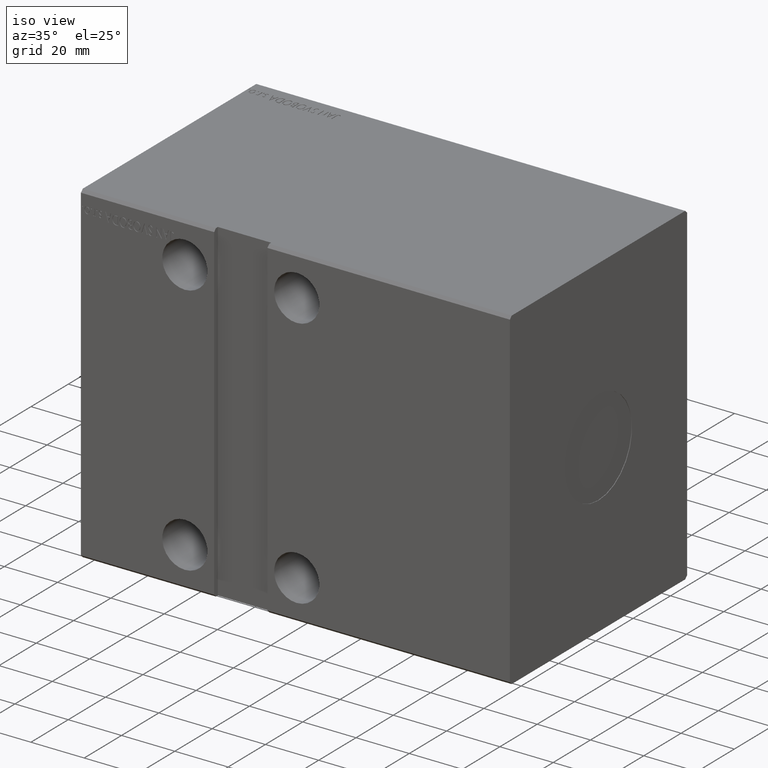
[diagram: clean part render]
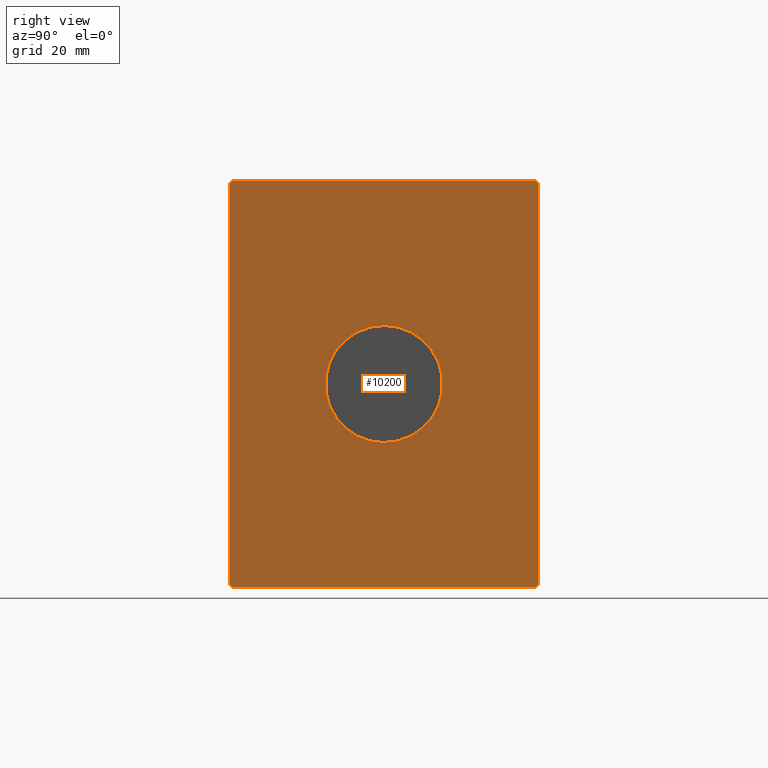
[diagram: tour spotlight — one face highlighted and labeled with its STEP entity id]
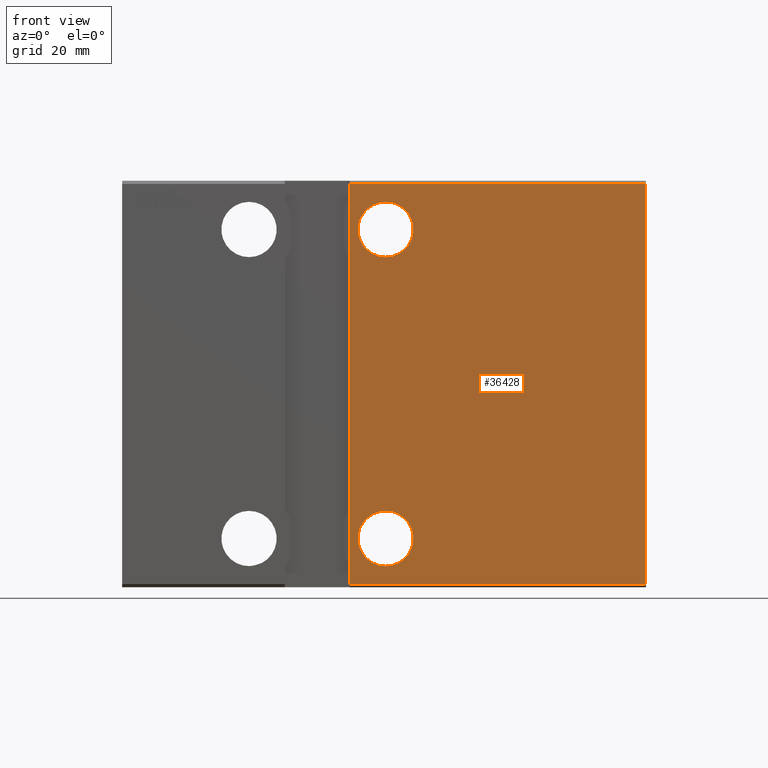
[diagram: tour spotlight — one face highlighted and labeled with its STEP entity id]
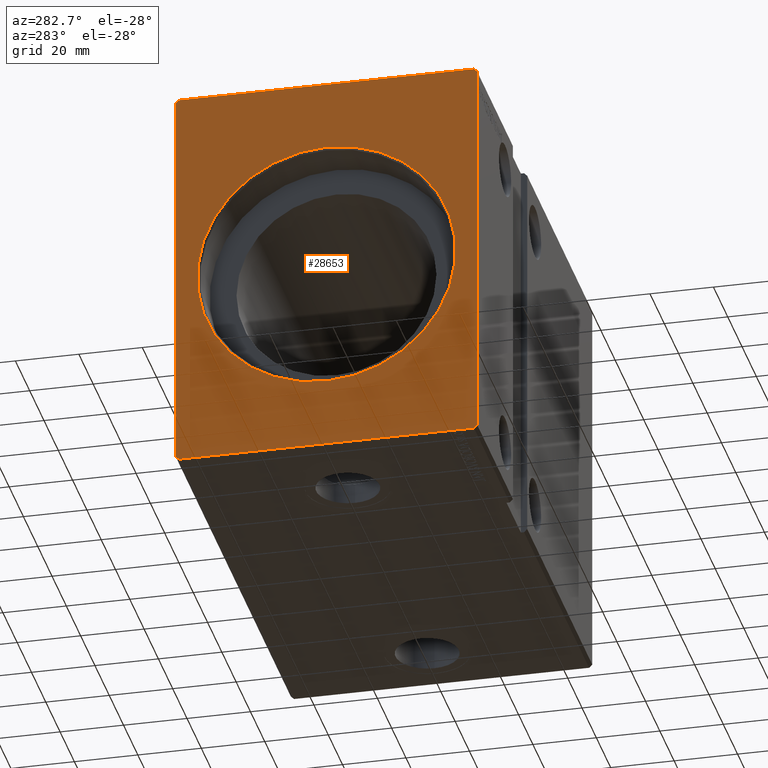
[diagram: tour spotlight — one face highlighted and labeled with its STEP entity id]
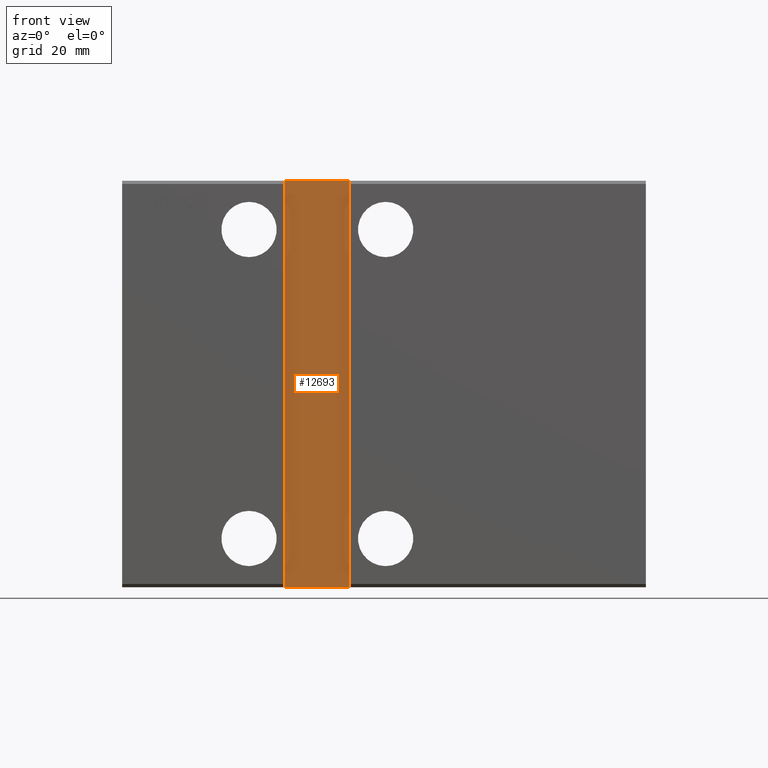
[diagram: tour spotlight — one face highlighted and labeled with its STEP entity id]
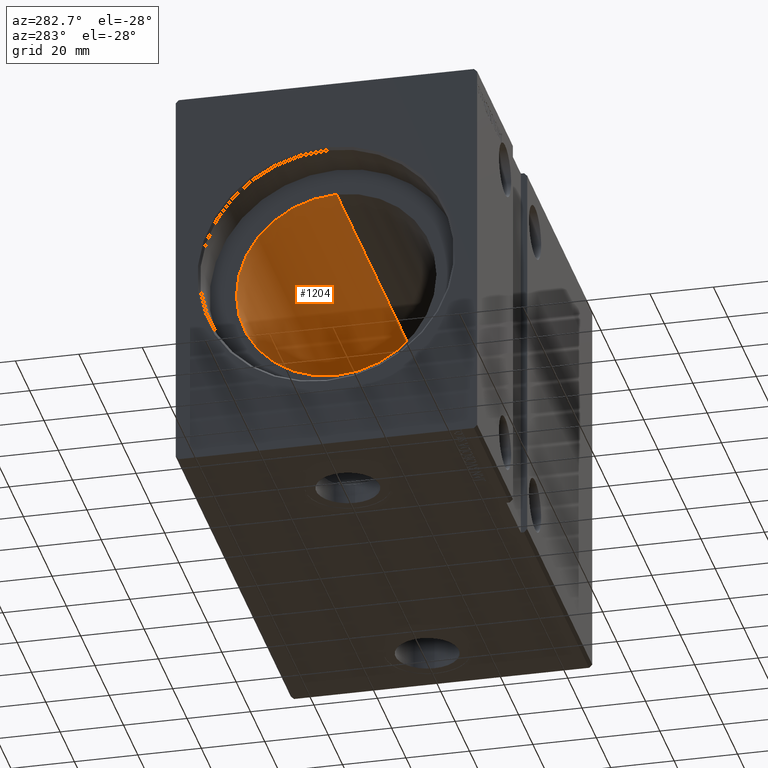
[diagram: tour spotlight — one face highlighted and labeled with its STEP entity id]
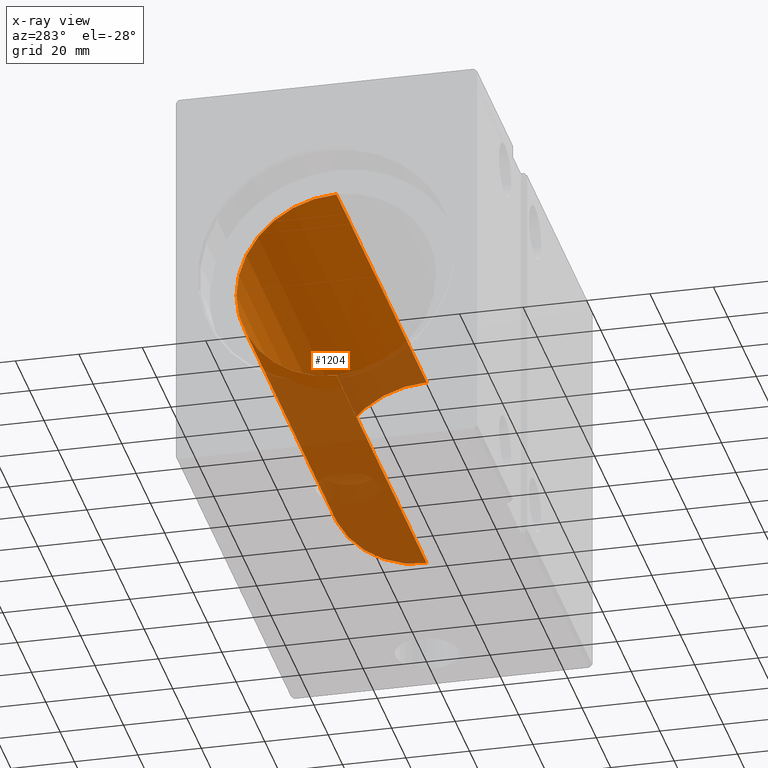
[diagram: x-ray of the same camera — body ghosted, this tour face saturated]
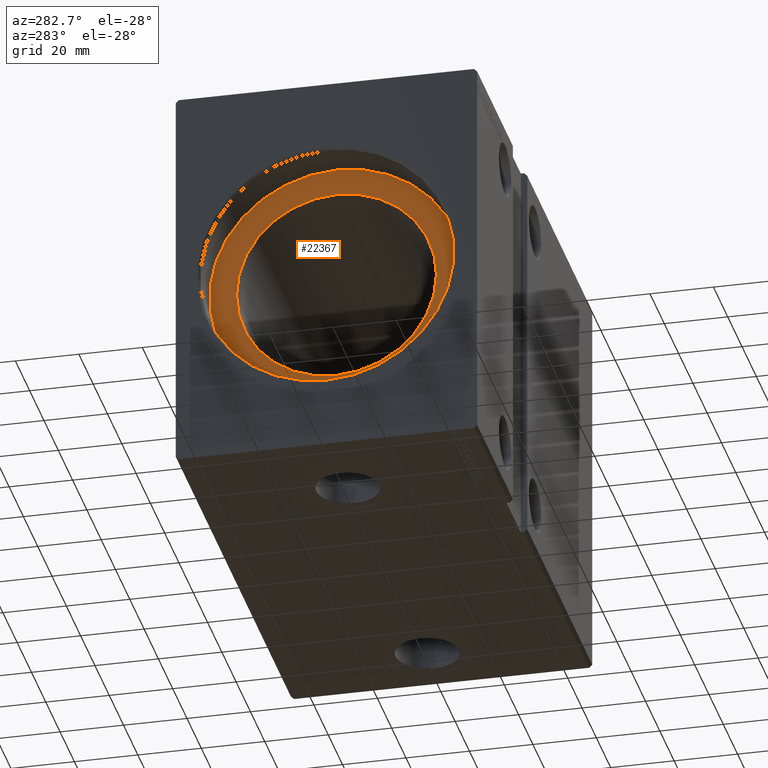
[diagram: tour spotlight — one face highlighted and labeled with its STEP entity id]
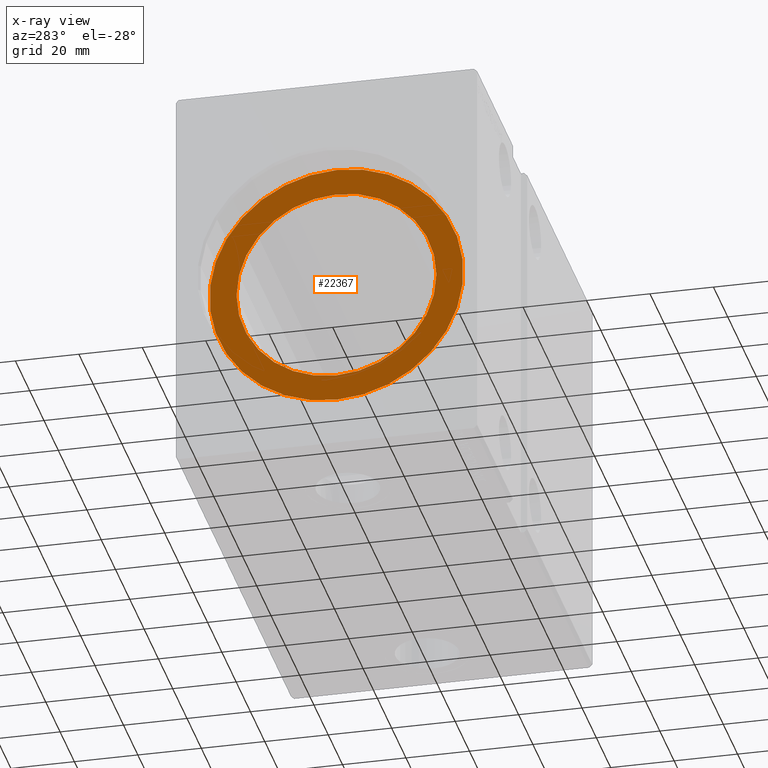
[diagram: x-ray of the same camera — body ghosted, this tour face saturated]
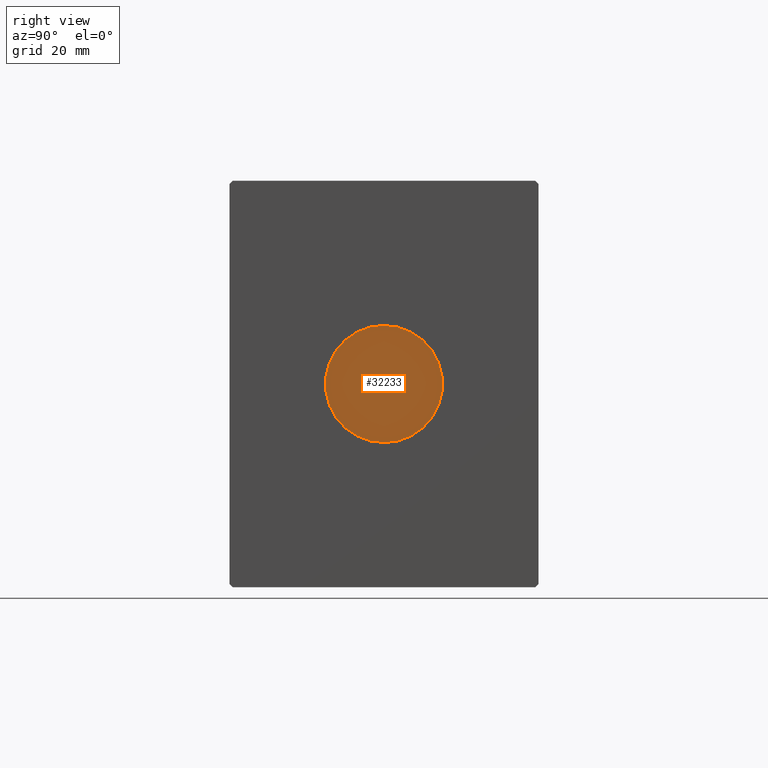
[diagram: tour spotlight — one face highlighted and labeled with its STEP entity id]
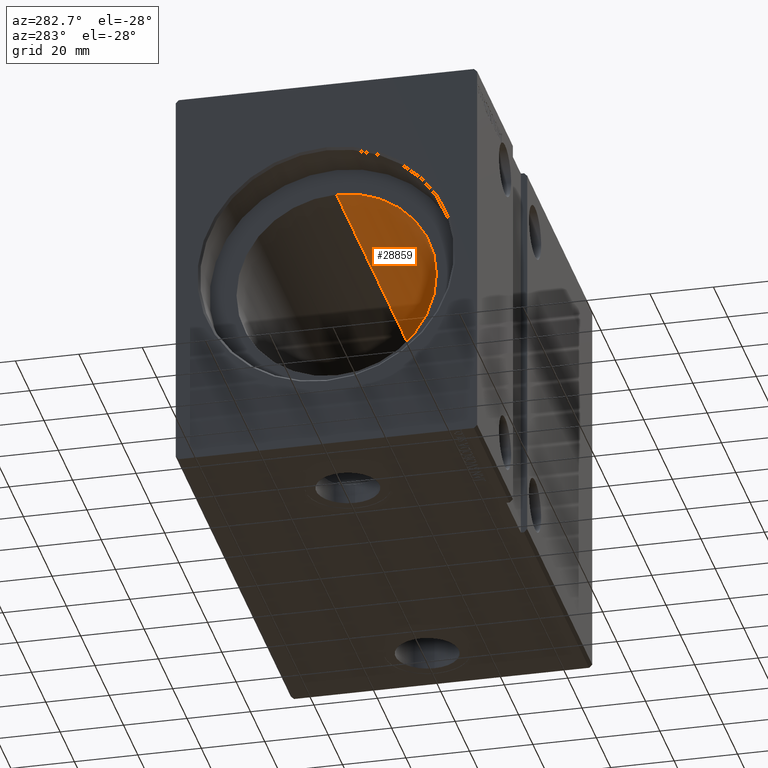
[diagram: tour spotlight — one face highlighted and labeled with its STEP entity id]
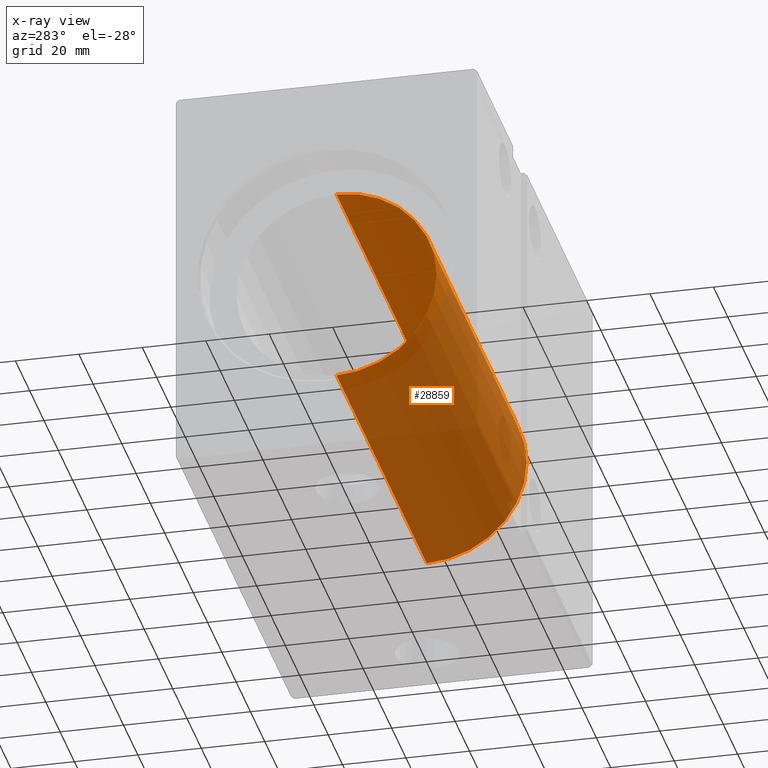
[diagram: x-ray of the same camera — body ghosted, this tour face saturated]
A machine part: a face-by-face anatomy tour. The part has 805 B-rep faces; the first image is the clean iso view, then the 8 largest visible faces are spotlighted one at a time (largest first), each with its STEP entity span.

Face 1 — right view, entity #10200. In plain terms, the highlighted planar face has unit normal (1, 0, 0).
Definition (entity closure, byte-faithful):
#248 = CARTESIAN_POINT ( 'NONE',  ( 161.0000000000000000, 46.50000000000000000, -62.50000000000000000 ) ) ;
#251 = CARTESIAN_POINT ( 'NONE',  ( 161.0000000000000000, -47.50000000000001421, 61.49999999999997868 ) ) ;
#363 = DIRECTION ( 'NONE',  ( 0.000000000000000000, 1.692413147294445970E-16, -1.000000000000000000 ) ) ;
#1063 = EDGE_CURVE ( 'NONE', #6188, #34056, #13962, .T. ) ;
#1837 = CARTESIAN_POINT ( 'NONE',  ( 161.0000000000000000, -46.50000000000000000, -62.50000000000001421 ) ) ;
#3251 = VERTEX_POINT ( 'NONE', #40828 ) ;
#3440 = FACE_BOUND ( 'NONE', #29229, .T. ) ;
#3656 = CARTESIAN_POINT ( 'NONE',  ( 161.0000000000000000, 0.000000000000000000, 0.000000000000000000 ) ) ;
#3774 = CARTESIAN_POINT ( 'NONE',  ( 161.0000000000000000, -47.50000000000001421, 61.49999999999997868 ) ) ;
#5614 = LINE ( 'NONE', #38035, #14957 ) ;
#6188 = VERTEX_POINT ( 'NONE', #14449 ) ;
#6478 = ORIENTED_EDGE ( 'NONE', *, *, #29978, .T. ) ;
#6598 = DIRECTION ( 'NONE',  ( 0.000000000000000000, 0.7071067811865451302, -0.7071067811865500152 ) ) ;
#6612 = DIRECTION ( 'NONE',  ( 0.000000000000000000, -1.128275431529630729E-16, 1.000000000000000000 ) ) ;
#7408 = ORIENTED_EDGE ( 'NONE', *, *, #16817, .T. ) ;
#7470 = DIRECTION ( 'NONE',  ( 0.000000000000000000, 0.7071067811865574537, 0.7071067811865376918 ) ) ;
#9282 = EDGE_CURVE ( 'NONE', #3251, #31462, #29238, .T. ) ;
#10154 = LINE ( 'NONE', #10368, #33413 ) ;
#10200 = ADVANCED_FACE ( 'NONE', ( #3440, #26276 ), #16454, .T. ) ;
#10368 = CARTESIAN_POINT ( 'NONE',  ( 161.0000000000000000, 46.50000000000000000, 62.49999999999998579 ) ) ;
#10500 = CARTESIAN_POINT ( 'NONE',  ( 161.0000000000000000, 0.000000000000000000, 0.000000000000000000 ) ) ;
#11056 = ORIENTED_EDGE ( 'NONE', *, *, #14491, .T. ) ;
#11514 = VERTEX_POINT ( 'NONE', #251 ) ;
#13124 = CARTESIAN_POINT ( 'NONE',  ( 161.0000000000000000, 46.50000000000000000, 62.49999999999998579 ) ) ;
#13189 = ORIENTED_EDGE ( 'NONE', *, *, #42193, .T. ) ;
#13207 = LINE ( 'NONE', #16836, #41568 ) ;
#13744 = LINE ( 'NONE', #37201, #22472 ) ;
#13962 = CIRCLE ( 'NONE', #19390, 18.00000000000000000 ) ;
#14231 = CARTESIAN_POINT ( 'NONE',  ( 161.0000000000000000, 47.50000000000000000, 61.49999999999998579 ) ) ;
#14336 = DIRECTION ( 'NONE',  ( 0.000000000000000000, 0.000000000000000000, -1.000000000000000000 ) ) ;
#14449 = CARTESIAN_POINT ( 'NONE',  ( 161.0000000000000000, 0.000000000000000000, -18.00000000000000000 ) ) ;
#14491 = EDGE_CURVE ( 'NONE', #25483, #3251, #26915, .T. ) ;
#14957 = VECTOR ( 'NONE', #18193, 1000.000000000000114 ) ;
#15155 = ORIENTED_EDGE ( 'NONE', *, *, #17198, .T. ) ;
#15940 = LINE ( 'NONE', #3774, #39519 ) ;
#16454 = PLANE ( 'NONE',  #36248 ) ;
#16601 = ORIENTED_EDGE ( 'NONE', *, *, #1063, .F. ) ;
#16637 = EDGE_LOOP ( 'NONE', ( #38078, #15155, #18142, #6478, #7408, #13189, #11056, #27047 ) ) ;
#16817 = EDGE_CURVE ( 'NONE', #36673, #18168, #13207, .T. ) ;
#16836 = CARTESIAN_POINT ( 'NONE',  ( 161.0000000000000000, -47.49999999999999289, -61.50000000000001421 ) ) ;
#17198 = EDGE_CURVE ( 'NONE', #37503, #34168, #10154, .T. ) ;
#17367 = DIRECTION ( 'NONE',  ( 0.000000000000000000, -0.7071067811865474617, 0.7071067811865474617 ) ) ;
#17646 = VECTOR ( 'NONE', #7470, 999.9999999999998863 ) ;
#18142 = ORIENTED_EDGE ( 'NONE', *, *, #23957, .T. ) ;
#18168 = VERTEX_POINT ( 'NONE', #1837 ) ;
#18193 = DIRECTION ( 'NONE',  ( 0.000000000000000000, -0.7071067811865474617, -0.7071067811865474617 ) ) ;
#18484 = CIRCLE ( 'NONE', #37542, 18.00000000000000000 ) ;
#19001 = CARTESIAN_POINT ( 'NONE',  ( 161.0000000000000000, 47.50000000000001421, -61.50000000000001421 ) ) ;
#19323 = VECTOR ( 'NONE', #29915, 1000.000000000000000 ) ;
#19390 = AXIS2_PLACEMENT_3D ( 'NONE', #31568, #42203, #41786 ) ;
#20009 = EDGE_CURVE ( 'NONE', #34056, #6188, #18484, .T. ) ;
#20213 = CARTESIAN_POINT ( 'NONE',  ( 161.0000000000000000, -47.49999999999999289, -61.50000000000001421 ) ) ;
#22472 = VECTOR ( 'NONE', #17367, 1000.000000000000114 ) ;
#23957 = EDGE_CURVE ( 'NONE', #34168, #11514, #5614, .T. ) ;
#24538 = EDGE_CURVE ( 'NONE', #31462, #37503, #13744, .T. ) ;
#24979 = ORIENTED_EDGE ( 'NONE', *, *, #20009, .F. ) ;
#25483 = VERTEX_POINT ( 'NONE', #30815 ) ;
#26276 = FACE_OUTER_BOUND ( 'NONE', #16637, .T. ) ;
#26915 = LINE ( 'NONE', #248, #17646 ) ;
#27047 = ORIENTED_EDGE ( 'NONE', *, *, #9282, .T. ) ;
#27144 = LINE ( 'NONE', #40152, #19323 ) ;
#29229 = EDGE_LOOP ( 'NONE', ( #16601, #24979 ) ) ;
#29238 = LINE ( 'NONE', #19001, #30766 ) ;
#29915 = DIRECTION ( 'NONE',  ( 0.000000000000000000, 1.000000000000000000, 1.492235248152092278E-16 ) ) ;
#29978 = EDGE_CURVE ( 'NONE', #11514, #36673, #15940, .T. ) ;
#30148 = DIRECTION ( 'NONE',  ( 1.000000000000000000, 0.000000000000000000, 0.000000000000000000 ) ) ;
#30766 = VECTOR ( 'NONE', #6612, 1000.000000000000000 ) ;
#30789 = CARTESIAN_POINT ( 'NONE',  ( 161.0000000000000000, 2.204364238465235428E-15, 18.00000000000000000 ) ) ;
#30815 = CARTESIAN_POINT ( 'NONE',  ( 161.0000000000000000, 46.50000000000000000, -62.50000000000000000 ) ) ;
#31462 = VERTEX_POINT ( 'NONE', #14231 ) ;
#31568 = CARTESIAN_POINT ( 'NONE',  ( 161.0000000000000000, 0.000000000000000000, 0.000000000000000000 ) ) ;
#33413 = VECTOR ( 'NONE', #35788, 1000.000000000000000 ) ;
#34056 = VERTEX_POINT ( 'NONE', #30789 ) ;
#34131 = CARTESIAN_POINT ( 'NONE',  ( 161.0000000000000000, -46.50000000000001421, 62.49999999999997868 ) ) ;
#34168 = VERTEX_POINT ( 'NONE', #34131 ) ;
#35660 = DIRECTION ( 'NONE',  ( 0.000000000000000000, 0.000000000000000000, -1.000000000000000000 ) ) ;
#35788 = DIRECTION ( 'NONE',  ( 0.000000000000000000, -1.000000000000000000, -7.461176240760460157E-17 ) ) ;
#36248 = AXIS2_PLACEMENT_3D ( 'NONE', #3656, #41266, #35660 ) ;
#36673 = VERTEX_POINT ( 'NONE', #20213 ) ;
#37201 = CARTESIAN_POINT ( 'NONE',  ( 161.0000000000000000, 47.50000000000000000, 61.49999999999998579 ) ) ;
#37503 = VERTEX_POINT ( 'NONE', #13124 ) ;
#37542 = AXIS2_PLACEMENT_3D ( 'NONE', #10500, #30148, #14336 ) ;
#38035 = CARTESIAN_POINT ( 'NONE',  ( 161.0000000000000000, -46.50000000000001421, 62.49999999999997868 ) ) ;
#38078 = ORIENTED_EDGE ( 'NONE', *, *, #24538, .T. ) ;
#39519 = VECTOR ( 'NONE', #363, 1000.000000000000000 ) ;
#40152 = CARTESIAN_POINT ( 'NONE',  ( 161.0000000000000000, -46.50000000000000000, -62.50000000000001421 ) ) ;
#40828 = CARTESIAN_POINT ( 'NONE',  ( 161.0000000000000000, 47.50000000000001421, -61.50000000000001421 ) ) ;
#41266 = DIRECTION ( 'NONE',  ( 1.000000000000000000, 0.000000000000000000, 0.000000000000000000 ) ) ;
#41568 = VECTOR ( 'NONE', #6598, 1000.000000000000114 ) ;
#41786 = DIRECTION ( 'NONE',  ( 0.000000000000000000, 0.000000000000000000, -1.000000000000000000 ) ) ;
#42193 = EDGE_CURVE ( 'NONE', #18168, #25483, #27144, .T. ) ;
#42203 = DIRECTION ( 'NONE',  ( 1.000000000000000000, 0.000000000000000000, 0.000000000000000000 ) ) ;

Face 2 — front view, entity #36428. In plain terms, the highlighted planar face has unit normal (-0, 1, 0).
Definition (entity closure, byte-faithful):
#251 = CARTESIAN_POINT ( 'NONE',  ( 161.0000000000000000, -47.50000000000001421, 61.49999999999997868 ) ) ;
#363 = DIRECTION ( 'NONE',  ( 0.000000000000000000, 1.692413147294445970E-16, -1.000000000000000000 ) ) ;
#375 = ORIENTED_EDGE ( 'NONE', *, *, #28875, .F. ) ;
#1116 = VERTEX_POINT ( 'NONE', #32821 ) ;
#1328 = CARTESIAN_POINT ( 'NONE',  ( 81.00000000000001421, -47.49999999999999289, -39.00000000000000000 ) ) ;
#1662 = ORIENTED_EDGE ( 'NONE', *, *, #10953, .T. ) ;
#1944 = ORIENTED_EDGE ( 'NONE', *, *, #38245, .F. ) ;
#2026 = LINE ( 'NONE', #37659, #29922 ) ;
#2287 = CARTESIAN_POINT ( 'NONE',  ( 70.00000000000001421, -47.50000000000000711, -61.50000000000002132 ) ) ;
#3266 = CARTESIAN_POINT ( 'NONE',  ( 161.0000000000000000, -47.50000000000001421, 61.49999999999997868 ) ) ;
#3758 = VERTEX_POINT ( 'NONE', #30295 ) ;
#3774 = CARTESIAN_POINT ( 'NONE',  ( 161.0000000000000000, -47.50000000000001421, 61.49999999999997868 ) ) ;
#4030 = CIRCLE ( 'NONE', #31978, 8.500000000000000000 ) ;
#4379 = LINE ( 'NONE', #7354, #36984 ) ;
#5897 = DIRECTION ( 'NONE',  ( -0.000000000000000000, 1.000000000000000000, 1.692413147294446216E-16 ) ) ;
#6172 = ORIENTED_EDGE ( 'NONE', *, *, #6562, .F. ) ;
#6562 = EDGE_CURVE ( 'NONE', #3758, #1116, #33351, .T. ) ;
#6736 = CARTESIAN_POINT ( 'NONE',  ( 81.00000000000001421, -47.49999999999999289, -47.50000000000000711 ) ) ;
#7354 = CARTESIAN_POINT ( 'NONE',  ( 161.0000000000000000, -47.49999999999999289, -61.50000000000001421 ) ) ;
#8765 = CIRCLE ( 'NONE', #15601, 8.500000000000007105 ) ;
#10897 = VERTEX_POINT ( 'NONE', #21921 ) ;
#10953 = EDGE_CURVE ( 'NONE', #37926, #14471, #15807, .T. ) ;
#11514 = VERTEX_POINT ( 'NONE', #251 ) ;
#11585 = LINE ( 'NONE', #3266, #21202 ) ;
#11607 = DIRECTION ( 'NONE',  ( 0.000000000000000000, -1.000000000000000000, -1.692413147294446216E-16 ) ) ;
#12325 = CARTESIAN_POINT ( 'NONE',  ( 81.00000000000000000, -47.50000000000000711, 47.49999999999999289 ) ) ;
#12562 = CARTESIAN_POINT ( 'NONE',  ( 81.00000000000001421, -47.49999999999999289, -47.50000000000000711 ) ) ;
#14471 = VERTEX_POINT ( 'NONE', #23501 ) ;
#14940 = AXIS2_PLACEMENT_3D ( 'NONE', #25509, #11607, #31477 ) ;
#15601 = AXIS2_PLACEMENT_3D ( 'NONE', #12562, #18775, #31781 ) ;
#15744 = DIRECTION ( 'NONE',  ( -0.000000000000000000, 1.000000000000000000, 1.692413147294446216E-16 ) ) ;
#15762 = DIRECTION ( 'NONE',  ( 0.000000000000000000, -1.000000000000000000, -1.692413147294446216E-16 ) ) ;
#15807 = CIRCLE ( 'NONE', #39668, 8.500000000000007105 ) ;
#15940 = LINE ( 'NONE', #3774, #39519 ) ;
#16284 = DIRECTION ( 'NONE',  ( -1.000000000000000000, -0.000000000000000000, -0.000000000000000000 ) ) ;
#17674 = ORIENTED_EDGE ( 'NONE', *, *, #22853, .T. ) ;
#18348 = EDGE_LOOP ( 'NONE', ( #375, #6172 ) ) ;
#18648 = ORIENTED_EDGE ( 'NONE', *, *, #29978, .F. ) ;
#18775 = DIRECTION ( 'NONE',  ( -0.000000000000000000, 1.000000000000000000, 1.692413147294446216E-16 ) ) ;
#19809 = EDGE_LOOP ( 'NONE', ( #33276, #24991, #1944, #18648 ) ) ;
#19855 = EDGE_CURVE ( 'NONE', #11514, #10897, #11585, .T. ) ;
#20213 = CARTESIAN_POINT ( 'NONE',  ( 161.0000000000000000, -47.49999999999999289, -61.50000000000001421 ) ) ;
#21202 = VECTOR ( 'NONE', #16284, 1000.000000000000000 ) ;
#21727 = FACE_BOUND ( 'NONE', #32603, .T. ) ;
#21849 = VERTEX_POINT ( 'NONE', #2287 ) ;
#21921 = CARTESIAN_POINT ( 'NONE',  ( 70.00000000000000000, -47.50000000000000711, 61.49999999999998579 ) ) ;
#22122 = EDGE_CURVE ( 'NONE', #21849, #10897, #2026, .T. ) ;
#22853 = EDGE_CURVE ( 'NONE', #14471, #37926, #8765, .T. ) ;
#23501 = CARTESIAN_POINT ( 'NONE',  ( 81.00000000000001421, -47.49999999999999289, -56.00000000000001421 ) ) ;
#24991 = ORIENTED_EDGE ( 'NONE', *, *, #22122, .F. ) ;
#25509 = CARTESIAN_POINT ( 'NONE',  ( 81.00000000000000000, -47.50000000000000711, 47.49999999999999289 ) ) ;
#28785 = DIRECTION ( 'NONE',  ( 0.000000000000000000, 0.000000000000000000, 1.000000000000000000 ) ) ;
#28875 = EDGE_CURVE ( 'NONE', #1116, #3758, #4030, .T. ) ;
#29922 = VECTOR ( 'NONE', #34455, 1000.000000000000000 ) ;
#29978 = EDGE_CURVE ( 'NONE', #11514, #36673, #15940, .T. ) ;
#29991 = DIRECTION ( 'NONE',  ( -1.000000000000000000, -0.000000000000000000, -0.000000000000000000 ) ) ;
#30295 = CARTESIAN_POINT ( 'NONE',  ( 81.00000000000000000, -47.50000000000000711, 55.99999999999999289 ) ) ;
#31477 = DIRECTION ( 'NONE',  ( 0.000000000000000000, 0.000000000000000000, 1.000000000000000000 ) ) ;
#31781 = DIRECTION ( 'NONE',  ( 0.000000000000000000, 0.000000000000000000, 1.000000000000000000 ) ) ;
#31922 = DIRECTION ( 'NONE',  ( 0.000000000000000000, 0.000000000000000000, 1.000000000000000000 ) ) ;
#31978 = AXIS2_PLACEMENT_3D ( 'NONE', #12325, #15762, #28785 ) ;
#32603 = EDGE_LOOP ( 'NONE', ( #17674, #1662 ) ) ;
#32821 = CARTESIAN_POINT ( 'NONE',  ( 81.00000000000000000, -47.50000000000000711, 38.99999999999999289 ) ) ;
#33276 = ORIENTED_EDGE ( 'NONE', *, *, #19855, .T. ) ;
#33351 = CIRCLE ( 'NONE', #14940, 8.500000000000000000 ) ;
#34455 = DIRECTION ( 'NONE',  ( -1.110223024625156540E-16, -0.000000000000000000, 1.000000000000000000 ) ) ;
#34518 = FACE_OUTER_BOUND ( 'NONE', #19809, .T. ) ;
#34950 = FACE_BOUND ( 'NONE', #18348, .T. ) ;
#35366 = DIRECTION ( 'NONE',  ( 0.000000000000000000, -1.692413147294446216E-16, 1.000000000000000000 ) ) ;
#36428 = ADVANCED_FACE ( 'NONE', ( #21727, #34518, #34950 ), #41138, .F. ) ;
#36673 = VERTEX_POINT ( 'NONE', #20213 ) ;
#36984 = VECTOR ( 'NONE', #29991, 1000.000000000000000 ) ;
#37619 = AXIS2_PLACEMENT_3D ( 'NONE', #41556, #15744, #35366 ) ;
#37659 = CARTESIAN_POINT ( 'NONE',  ( 70.00000000000000000, -47.50000000000000711, 62.49999999999997868 ) ) ;
#37926 = VERTEX_POINT ( 'NONE', #1328 ) ;
#38245 = EDGE_CURVE ( 'NONE', #36673, #21849, #4379, .T. ) ;
#39519 = VECTOR ( 'NONE', #363, 1000.000000000000000 ) ;
#39668 = AXIS2_PLACEMENT_3D ( 'NONE', #6736, #5897, #31922 ) ;
#41138 = PLANE ( 'NONE',  #37619 ) ;
#41556 = CARTESIAN_POINT ( 'NONE',  ( 161.0000000000000000, -47.50000000000001421, 61.49999999999997868 ) ) ;

Face 3 — auxiliary view, entity #28653. In plain terms, the highlighted planar face has unit normal (1, 0, 0).
Definition (entity closure, byte-faithful):
#485 = EDGE_LOOP ( 'NONE', ( #4804, #9442, #35208, #15339, #21221, #8446, #15571, #26823 ) ) ;
#801 = VECTOR ( 'NONE', #3843, 1000.000000000000114 ) ;
#866 = PLANE ( 'NONE',  #34015 ) ;
#1954 = CARTESIAN_POINT ( 'NONE',  ( 0.000000000000000000, 47.50000000000000000, 61.49999999999998579 ) ) ;
#2082 = CARTESIAN_POINT ( 'NONE',  ( 0.000000000000000000, 0.000000000000000000, 40.70000000000003837 ) ) ;
#2530 = DIRECTION ( 'NONE',  ( 0.000000000000000000, -0.7071067811865474617, 0.7071067811865474617 ) ) ;
#2936 = CARTESIAN_POINT ( 'NONE',  ( 0.000000000000000000, -46.50000000000001421, 62.49999999999997868 ) ) ;
#3361 = DIRECTION ( 'NONE',  ( 1.000000000000000000, 0.000000000000000000, 0.000000000000000000 ) ) ;
#3843 = DIRECTION ( 'NONE',  ( 0.000000000000000000, 0.7071067811865451302, -0.7071067811865500152 ) ) ;
#4804 = ORIENTED_EDGE ( 'NONE', *, *, #19294, .F. ) ;
#5231 = CARTESIAN_POINT ( 'NONE',  ( 0.000000000000000000, -46.50000000000001421, 62.49999999999997868 ) ) ;
#5527 = VERTEX_POINT ( 'NONE', #33409 ) ;
#6353 = CARTESIAN_POINT ( 'NONE',  ( 0.000000000000000000, 0.000000000000000000, 0.000000000000000000 ) ) ;
#6613 = VERTEX_POINT ( 'NONE', #5231 ) ;
#6825 = CARTESIAN_POINT ( 'NONE',  ( 0.000000000000000000, -47.49999999999999289, -61.50000000000001421 ) ) ;
#6973 = DIRECTION ( 'NONE',  ( 0.000000000000000000, 1.692413147294445970E-16, -1.000000000000000000 ) ) ;
#8446 = ORIENTED_EDGE ( 'NONE', *, *, #24258, .F. ) ;
#8640 = LINE ( 'NONE', #38098, #18299 ) ;
#8972 = AXIS2_PLACEMENT_3D ( 'NONE', #6353, #3361, #19370 ) ;
#9442 = ORIENTED_EDGE ( 'NONE', *, *, #18788, .F. ) ;
#9480 = EDGE_CURVE ( 'NONE', #18601, #18921, #23676, .T. ) ;
#10234 = FACE_OUTER_BOUND ( 'NONE', #485, .T. ) ;
#10643 = CARTESIAN_POINT ( 'NONE',  ( 0.000000000000000000, 0.000000000000000000, 0.000000000000000000 ) ) ;
#10942 = CIRCLE ( 'NONE', #19165, 40.70000000000003837 ) ;
#11109 = EDGE_CURVE ( 'NONE', #40664, #5527, #24869, .T. ) ;
#11878 = VERTEX_POINT ( 'NONE', #14403 ) ;
#12610 = CARTESIAN_POINT ( 'NONE',  ( 0.000000000000000000, 46.50000000000000000, 62.49999999999998579 ) ) ;
#14274 = DIRECTION ( 'NONE',  ( 1.000000000000000000, 0.000000000000000000, 0.000000000000000000 ) ) ;
#14403 = CARTESIAN_POINT ( 'NONE',  ( 0.000000000000000000, -47.50000000000001421, 61.49999999999997868 ) ) ;
#15103 = DIRECTION ( 'NONE',  ( 0.000000000000000000, 0.000000000000000000, -1.000000000000000000 ) ) ;
#15152 = DIRECTION ( 'NONE',  ( 0.000000000000000000, -0.7071067811865474617, -0.7071067811865474617 ) ) ;
#15175 = EDGE_CURVE ( 'NONE', #29613, #6613, #29062, .T. ) ;
#15339 = ORIENTED_EDGE ( 'NONE', *, *, #26273, .F. ) ;
#15571 = ORIENTED_EDGE ( 'NONE', *, *, #35412, .F. ) ;
#16075 = VERTEX_POINT ( 'NONE', #36878 ) ;
#16178 = VERTEX_POINT ( 'NONE', #2082 ) ;
#17052 = EDGE_LOOP ( 'NONE', ( #32684, #24339 ) ) ;
#17420 = CARTESIAN_POINT ( 'NONE',  ( 0.000000000000000000, -47.49999999999999289, -61.50000000000001421 ) ) ;
#18008 = CARTESIAN_POINT ( 'NONE',  ( 0.000000000000000000, -46.50000000000000000, -62.50000000000001421 ) ) ;
#18299 = VECTOR ( 'NONE', #25098, 1000.000000000000000 ) ;
#18601 = VERTEX_POINT ( 'NONE', #17420 ) ;
#18788 = EDGE_CURVE ( 'NONE', #5527, #39239, #36590, .T. ) ;
#18921 = VERTEX_POINT ( 'NONE', #18008 ) ;
#19165 = AXIS2_PLACEMENT_3D ( 'NONE', #21514, #31946, #15103 ) ;
#19223 = VECTOR ( 'NONE', #30838, 999.9999999999998863 ) ;
#19294 = EDGE_CURVE ( 'NONE', #39239, #29613, #38381, .T. ) ;
#19370 = DIRECTION ( 'NONE',  ( 0.000000000000000000, 0.000000000000000000, -1.000000000000000000 ) ) ;
#20996 = CARTESIAN_POINT ( 'NONE',  ( 0.000000000000000000, 47.50000000000001421, -61.50000000000001421 ) ) ;
#21221 = ORIENTED_EDGE ( 'NONE', *, *, #9480, .F. ) ;
#21514 = CARTESIAN_POINT ( 'NONE',  ( 0.000000000000000000, 0.000000000000000000, 0.000000000000000000 ) ) ;
#21882 = VECTOR ( 'NONE', #2530, 1000.000000000000114 ) ;
#21923 = CARTESIAN_POINT ( 'NONE',  ( 0.000000000000000000, 46.50000000000000000, -62.50000000000000000 ) ) ;
#22245 = DIRECTION ( 'NONE',  ( 0.000000000000000000, -1.000000000000000000, -7.461176240760460157E-17 ) ) ;
#23676 = LINE ( 'NONE', #6825, #801 ) ;
#23837 = VECTOR ( 'NONE', #6973, 1000.000000000000000 ) ;
#24258 = EDGE_CURVE ( 'NONE', #11878, #18601, #29173, .T. ) ;
#24339 = ORIENTED_EDGE ( 'NONE', *, *, #36520, .T. ) ;
#24869 = LINE ( 'NONE', #37866, #19223 ) ;
#25098 = DIRECTION ( 'NONE',  ( 0.000000000000000000, 1.000000000000000000, 1.492235248152092278E-16 ) ) ;
#25268 = VECTOR ( 'NONE', #37009, 1000.000000000000000 ) ;
#26273 = EDGE_CURVE ( 'NONE', #18921, #40664, #8640, .T. ) ;
#26823 = ORIENTED_EDGE ( 'NONE', *, *, #15175, .F. ) ;
#27102 = FACE_BOUND ( 'NONE', #17052, .T. ) ;
#28653 = ADVANCED_FACE ( 'NONE', ( #27102, #10234 ), #866, .F. ) ;
#29062 = LINE ( 'NONE', #12610, #34008 ) ;
#29173 = LINE ( 'NONE', #32789, #23837 ) ;
#29385 = LINE ( 'NONE', #2936, #41666 ) ;
#29613 = VERTEX_POINT ( 'NONE', #37968 ) ;
#30838 = DIRECTION ( 'NONE',  ( 0.000000000000000000, 0.7071067811865574537, 0.7071067811865376918 ) ) ;
#31756 = CARTESIAN_POINT ( 'NONE',  ( 0.000000000000000000, 47.50000000000000000, 61.49999999999998579 ) ) ;
#31946 = DIRECTION ( 'NONE',  ( 1.000000000000000000, 0.000000000000000000, 0.000000000000000000 ) ) ;
#32684 = ORIENTED_EDGE ( 'NONE', *, *, #33806, .T. ) ;
#32789 = CARTESIAN_POINT ( 'NONE',  ( 0.000000000000000000, -47.50000000000001421, 61.49999999999997868 ) ) ;
#33409 = CARTESIAN_POINT ( 'NONE',  ( 0.000000000000000000, 47.50000000000001421, -61.50000000000001421 ) ) ;
#33543 = CIRCLE ( 'NONE', #8972, 40.70000000000003837 ) ;
#33806 = EDGE_CURVE ( 'NONE', #16178, #16075, #10942, .T. ) ;
#34008 = VECTOR ( 'NONE', #22245, 1000.000000000000000 ) ;
#34015 = AXIS2_PLACEMENT_3D ( 'NONE', #10643, #14274, #39704 ) ;
#35208 = ORIENTED_EDGE ( 'NONE', *, *, #11109, .F. ) ;
#35412 = EDGE_CURVE ( 'NONE', #6613, #11878, #29385, .T. ) ;
#36520 = EDGE_CURVE ( 'NONE', #16075, #16178, #33543, .T. ) ;
#36590 = LINE ( 'NONE', #20996, #25268 ) ;
#36878 = CARTESIAN_POINT ( 'NONE',  ( 0.000000000000000000, 4.984312472529732047E-15, -40.70000000000003837 ) ) ;
#37009 = DIRECTION ( 'NONE',  ( 0.000000000000000000, -1.128275431529630729E-16, 1.000000000000000000 ) ) ;
#37866 = CARTESIAN_POINT ( 'NONE',  ( 0.000000000000000000, 46.50000000000000000, -62.50000000000000000 ) ) ;
#37968 = CARTESIAN_POINT ( 'NONE',  ( 0.000000000000000000, 46.50000000000000000, 62.49999999999998579 ) ) ;
#38098 = CARTESIAN_POINT ( 'NONE',  ( 0.000000000000000000, -46.50000000000000000, -62.50000000000001421 ) ) ;
#38381 = LINE ( 'NONE', #31756, #21882 ) ;
#39239 = VERTEX_POINT ( 'NONE', #1954 ) ;
#39704 = DIRECTION ( 'NONE',  ( 0.000000000000000000, 0.000000000000000000, -1.000000000000000000 ) ) ;
#40664 = VERTEX_POINT ( 'NONE', #21923 ) ;
#41666 = VECTOR ( 'NONE', #15152, 1000.000000000000114 ) ;

Face 4 — front view, entity #12693. In plain terms, the highlighted planar face has unit normal (0, -1, 0).
Definition (entity closure, byte-faithful):
#1091 = VERTEX_POINT ( 'NONE', #12330 ) ;
#1453 = ORIENTED_EDGE ( 'NONE', *, *, #21151, .T. ) ;
#2934 = PLANE ( 'NONE',  #18294 ) ;
#3112 = DIRECTION ( 'NONE',  ( -1.110223024625156540E-16, -0.000000000000000000, 1.000000000000000000 ) ) ;
#3540 = CARTESIAN_POINT ( 'NONE',  ( 70.00000000000000000, -45.50000000000000711, 62.49999999999997868 ) ) ;
#5187 = CARTESIAN_POINT ( 'NONE',  ( 70.00000000000000000, -45.50000000000000711, 62.49999999999997868 ) ) ;
#5911 = CARTESIAN_POINT ( 'NONE',  ( 0.000000000000000000, -45.50000000000000711, 1.101411730778925047E-16 ) ) ;
#7578 = VECTOR ( 'NONE', #16787, 1000.000000000000000 ) ;
#8675 = DIRECTION ( 'NONE',  ( 0.000000000000000000, -1.000000000000000000, 0.000000000000000000 ) ) ;
#10770 = CARTESIAN_POINT ( 'NONE',  ( 49.99999999999998579, -45.50000000000000711, 62.49999999999997868 ) ) ;
#12330 = CARTESIAN_POINT ( 'NONE',  ( 49.99999999999998579, -45.50000000000000711, 62.49999999999997868 ) ) ;
#12687 = LINE ( 'NONE', #3540, #25362 ) ;
#12693 = ADVANCED_FACE ( 'NONE', ( #24926 ), #2934, .T. ) ;
#13346 = DIRECTION ( 'NONE',  ( 1.000000000000000000, 0.000000000000000000, 0.000000000000000000 ) ) ;
#14607 = CARTESIAN_POINT ( 'NONE',  ( 50.00000000000000000, -45.50000000000000711, -62.50000000000002842 ) ) ;
#14811 = VERTEX_POINT ( 'NONE', #14607 ) ;
#15299 = DIRECTION ( 'NONE',  ( 0.000000000000000000, -0.000000000000000000, -1.000000000000000000 ) ) ;
#16787 = DIRECTION ( 'NONE',  ( -1.000000000000000000, -0.000000000000000000, -0.000000000000000000 ) ) ;
#17744 = ORIENTED_EDGE ( 'NONE', *, *, #37467, .T. ) ;
#18294 = AXIS2_PLACEMENT_3D ( 'NONE', #5911, #8675, #15299 ) ;
#19684 = VECTOR ( 'NONE', #25676, 1000.000000000000000 ) ;
#21151 = EDGE_CURVE ( 'NONE', #14811, #28890, #39386, .T. ) ;
#23901 = VERTEX_POINT ( 'NONE', #5187 ) ;
#24926 = FACE_OUTER_BOUND ( 'NONE', #37008, .T. ) ;
#25362 = VECTOR ( 'NONE', #3112, 1000.000000000000000 ) ;
#25676 = DIRECTION ( 'NONE',  ( 1.110223024625156540E-16, 0.000000000000000000, -1.000000000000000000 ) ) ;
#26384 = CARTESIAN_POINT ( 'NONE',  ( 50.00000000000000000, -45.50000000000000711, -62.50000000000002842 ) ) ;
#26622 = EDGE_CURVE ( 'NONE', #1091, #14811, #29507, .T. ) ;
#27580 = VECTOR ( 'NONE', #13346, 1000.000000000000000 ) ;
#28890 = VERTEX_POINT ( 'NONE', #37486 ) ;
#29507 = LINE ( 'NONE', #35694, #19684 ) ;
#29712 = ORIENTED_EDGE ( 'NONE', *, *, #35512, .T. ) ;
#33004 = LINE ( 'NONE', #10770, #7578 ) ;
#35512 = EDGE_CURVE ( 'NONE', #23901, #1091, #33004, .T. ) ;
#35694 = CARTESIAN_POINT ( 'NONE',  ( 49.99999999999998579, -45.50000000000000711, 62.49999999999997868 ) ) ;
#37008 = EDGE_LOOP ( 'NONE', ( #17744, #29712, #38542, #1453 ) ) ;
#37467 = EDGE_CURVE ( 'NONE', #28890, #23901, #12687, .T. ) ;
#37486 = CARTESIAN_POINT ( 'NONE',  ( 70.00000000000001421, -45.50000000000000711, -62.50000000000002842 ) ) ;
#38542 = ORIENTED_EDGE ( 'NONE', *, *, #26622, .T. ) ;
#39386 = LINE ( 'NONE', #26384, #27580 ) ;

Face 5 — auxiliary view, entity #1204. An x-ray twin of the same camera follows (body ghosted, this face saturated) — the face is partly hidden behind the body. In plain terms, the highlighted cylindrical surface (partial cylindrical patch) has radius 31.5 mm, axis along (-1, -0, -0).
Definition (entity closure, byte-faithful):
#767 = VERTEX_POINT ( 'NONE', #35235 ) ;
#1204 = ADVANCED_FACE ( 'NONE', ( #10397 ), #36452, .F. ) ;
#1281 = AXIS2_PLACEMENT_3D ( 'NONE', #32010, #25206, #9804 ) ;
#1575 = ORIENTED_EDGE ( 'NONE', *, *, #17415, .F. ) ;
#2467 = CARTESIAN_POINT ( 'NONE',  ( 140.1999999999999886, 0.000000000000000000, 31.50000000000000000 ) ) ;
#3940 = DIRECTION ( 'NONE',  ( 0.000000000000000000, 0.000000000000000000, 1.000000000000000000 ) ) ;
#6091 = LINE ( 'NONE', #31904, #38863 ) ;
#6819 = CIRCLE ( 'NONE', #12957, 31.50000000000000000 ) ;
#9642 = VERTEX_POINT ( 'NONE', #18310 ) ;
#9804 = DIRECTION ( 'NONE',  ( 0.000000000000000000, 0.000000000000000000, 1.000000000000000000 ) ) ;
#10397 = FACE_OUTER_BOUND ( 'NONE', #16915, .T. ) ;
#12957 = AXIS2_PLACEMENT_3D ( 'NONE', #25941, #33167, #3940 ) ;
#16915 = EDGE_LOOP ( 'NONE', ( #1575, #32784, #39192, #22216 ) ) ;
#17415 = EDGE_CURVE ( 'NONE', #9642, #18995, #6091, .T. ) ;
#17490 = EDGE_CURVE ( 'NONE', #38336, #18995, #6819, .T. ) ;
#18310 = CARTESIAN_POINT ( 'NONE',  ( 140.1999999999999886, 3.857637417314162689E-15, -31.50000000000000000 ) ) ;
#18995 = VERTEX_POINT ( 'NONE', #28888 ) ;
#20029 = DIRECTION ( 'NONE',  ( 0.000000000000000000, 0.000000000000000000, 1.000000000000000000 ) ) ;
#22143 = AXIS2_PLACEMENT_3D ( 'NONE', #30050, #26014, #20029 ) ;
#22216 = ORIENTED_EDGE ( 'NONE', *, *, #17490, .T. ) ;
#24885 = LINE ( 'NONE', #2467, #41575 ) ;
#25206 = DIRECTION ( 'NONE',  ( -1.000000000000000000, 0.000000000000000000, 0.000000000000000000 ) ) ;
#25941 = CARTESIAN_POINT ( 'NONE',  ( 14.00000000000001243, 0.000000000000000000, 0.000000000000000000 ) ) ;
#26014 = DIRECTION ( 'NONE',  ( -1.000000000000000000, -0.000000000000000000, -0.000000000000000000 ) ) ;
#26899 = EDGE_CURVE ( 'NONE', #767, #9642, #38746, .T. ) ;
#28888 = CARTESIAN_POINT ( 'NONE',  ( 14.00000000000001243, 3.857637417314162689E-15, -31.50000000000000000 ) ) ;
#30050 = CARTESIAN_POINT ( 'NONE',  ( 140.1999999999999886, 0.000000000000000000, 0.000000000000000000 ) ) ;
#30833 = EDGE_CURVE ( 'NONE', #767, #38336, #24885, .T. ) ;
#31904 = CARTESIAN_POINT ( 'NONE',  ( 140.1999999999999886, 3.857637417314162689E-15, -31.50000000000000000 ) ) ;
#32010 = CARTESIAN_POINT ( 'NONE',  ( 140.1999999999999886, 0.000000000000000000, 0.000000000000000000 ) ) ;
#32784 = ORIENTED_EDGE ( 'NONE', *, *, #26899, .F. ) ;
#33167 = DIRECTION ( 'NONE',  ( -1.000000000000000000, 0.000000000000000000, 0.000000000000000000 ) ) ;
#35235 = CARTESIAN_POINT ( 'NONE',  ( 140.1999999999999886, 0.000000000000000000, 31.50000000000000000 ) ) ;
#36452 = CYLINDRICAL_SURFACE ( 'NONE', #22143, 31.50000000000000000 ) ;
#38319 = DIRECTION ( 'NONE',  ( -1.000000000000000000, -0.000000000000000000, -0.000000000000000000 ) ) ;
#38336 = VERTEX_POINT ( 'NONE', #39333 ) ;
#38525 = DIRECTION ( 'NONE',  ( -1.000000000000000000, -0.000000000000000000, -0.000000000000000000 ) ) ;
#38746 = CIRCLE ( 'NONE', #1281, 31.50000000000000000 ) ;
#38863 = VECTOR ( 'NONE', #38319, 1000.000000000000000 ) ;
#39192 = ORIENTED_EDGE ( 'NONE', *, *, #30833, .T. ) ;
#39333 = CARTESIAN_POINT ( 'NONE',  ( 14.00000000000001243, 0.000000000000000000, 31.50000000000000000 ) ) ;
#41575 = VECTOR ( 'NONE', #38525, 1000.000000000000000 ) ;

Face 6 — auxiliary view, entity #22367. An x-ray twin of the same camera follows (body ghosted, this face saturated) — the face is partly hidden behind the body. In plain terms, the highlighted planar face has unit normal (-1, 0, 0).
Definition (entity closure, byte-faithful):
#16 = CARTESIAN_POINT ( 'NONE',  ( 14.00000000000000000, 0.000000000000000000, 0.000000000000000000 ) ) ;
#3423 = AXIS2_PLACEMENT_3D ( 'NONE', #34676, #18681, #25312 ) ;
#3940 = DIRECTION ( 'NONE',  ( 0.000000000000000000, 0.000000000000000000, 1.000000000000000000 ) ) ;
#5820 = VERTEX_POINT ( 'NONE', #23502 ) ;
#5989 = DIRECTION ( 'NONE',  ( 0.000000000000000000, 0.000000000000000000, 1.000000000000000000 ) ) ;
#6158 = CIRCLE ( 'NONE', #3423, 31.50000000000000000 ) ;
#6819 = CIRCLE ( 'NONE', #12957, 31.50000000000000000 ) ;
#8802 = CARTESIAN_POINT ( 'NONE',  ( 14.00000000000000000, 0.000000000000000000, 0.000000000000000000 ) ) ;
#10196 = AXIS2_PLACEMENT_3D ( 'NONE', #16, #19219, #5989 ) ;
#11003 = ORIENTED_EDGE ( 'NONE', *, *, #30821, .F. ) ;
#11491 = EDGE_LOOP ( 'NONE', ( #16381, #16703 ) ) ;
#12870 = FACE_BOUND ( 'NONE', #24720, .T. ) ;
#12957 = AXIS2_PLACEMENT_3D ( 'NONE', #25941, #33167, #3940 ) ;
#13095 = CARTESIAN_POINT ( 'NONE',  ( 14.00000000000000000, 0.000000000000000000, 0.000000000000000000 ) ) ;
#16381 = ORIENTED_EDGE ( 'NONE', *, *, #36756, .T. ) ;
#16703 = ORIENTED_EDGE ( 'NONE', *, *, #25827, .T. ) ;
#17490 = EDGE_CURVE ( 'NONE', #38336, #18995, #6819, .T. ) ;
#18681 = DIRECTION ( 'NONE',  ( -1.000000000000000000, 0.000000000000000000, 0.000000000000000000 ) ) ;
#18995 = VERTEX_POINT ( 'NONE', #28888 ) ;
#19219 = DIRECTION ( 'NONE',  ( -1.000000000000000000, 0.000000000000000000, 0.000000000000000000 ) ) ;
#19902 = CIRCLE ( 'NONE', #20603, 40.00000000000000000 ) ;
#20603 = AXIS2_PLACEMENT_3D ( 'NONE', #8802, #38481, #22065 ) ;
#22065 = DIRECTION ( 'NONE',  ( 0.000000000000000000, 0.000000000000000000, 1.000000000000000000 ) ) ;
#22367 = ADVANCED_FACE ( 'NONE', ( #12870, #22929 ), #25505, .T. ) ;
#22699 = ORIENTED_EDGE ( 'NONE', *, *, #17490, .F. ) ;
#22929 = FACE_OUTER_BOUND ( 'NONE', #11491, .T. ) ;
#23502 = CARTESIAN_POINT ( 'NONE',  ( 14.00000000000000000, 4.898587196589413026E-15, -40.00000000000000000 ) ) ;
#24720 = EDGE_LOOP ( 'NONE', ( #22699, #11003 ) ) ;
#25215 = CIRCLE ( 'NONE', #10196, 40.00000000000000000 ) ;
#25312 = DIRECTION ( 'NONE',  ( 0.000000000000000000, 0.000000000000000000, 1.000000000000000000 ) ) ;
#25505 = PLANE ( 'NONE',  #41492 ) ;
#25827 = EDGE_CURVE ( 'NONE', #5820, #39756, #25215, .T. ) ;
#25924 = DIRECTION ( 'NONE',  ( -1.000000000000000000, 0.000000000000000000, 0.000000000000000000 ) ) ;
#25941 = CARTESIAN_POINT ( 'NONE',  ( 14.00000000000001243, 0.000000000000000000, 0.000000000000000000 ) ) ;
#28888 = CARTESIAN_POINT ( 'NONE',  ( 14.00000000000001243, 3.857637417314162689E-15, -31.50000000000000000 ) ) ;
#30821 = EDGE_CURVE ( 'NONE', #18995, #38336, #6158, .T. ) ;
#33167 = DIRECTION ( 'NONE',  ( -1.000000000000000000, 0.000000000000000000, 0.000000000000000000 ) ) ;
#34676 = CARTESIAN_POINT ( 'NONE',  ( 14.00000000000001243, 0.000000000000000000, 0.000000000000000000 ) ) ;
#36756 = EDGE_CURVE ( 'NONE', #39756, #5820, #19902, .T. ) ;
#36860 = CARTESIAN_POINT ( 'NONE',  ( 14.00000000000000000, 0.000000000000000000, 40.00000000000000000 ) ) ;
#38336 = VERTEX_POINT ( 'NONE', #39333 ) ;
#38481 = DIRECTION ( 'NONE',  ( -1.000000000000000000, 0.000000000000000000, 0.000000000000000000 ) ) ;
#38931 = DIRECTION ( 'NONE',  ( 0.000000000000000000, 0.000000000000000000, 1.000000000000000000 ) ) ;
#39333 = CARTESIAN_POINT ( 'NONE',  ( 14.00000000000001243, 0.000000000000000000, 31.50000000000000000 ) ) ;
#39756 = VERTEX_POINT ( 'NONE', #36860 ) ;
#41492 = AXIS2_PLACEMENT_3D ( 'NONE', #13095, #25924, #38931 ) ;

Face 7 — right view, entity #32233. In plain terms, the highlighted planar face has unit normal (1, 0, 0).
Definition (entity closure, byte-faithful):
#1450 = AXIS2_PLACEMENT_3D ( 'NONE', #26519, #36739, #7500 ) ;
#4229 = DIRECTION ( 'NONE',  ( 1.000000000000000000, 0.000000000000000000, 0.000000000000000000 ) ) ;
#6725 = EDGE_LOOP ( 'NONE', ( #40746, #33403 ) ) ;
#7500 = DIRECTION ( 'NONE',  ( 0.000000000000000000, 0.000000000000000000, -1.000000000000000000 ) ) ;
#9147 = EDGE_CURVE ( 'NONE', #13078, #33488, #23974, .T. ) ;
#11010 = DIRECTION ( 'NONE',  ( 0.000000000000000000, 0.000000000000000000, -1.000000000000000000 ) ) ;
#13078 = VERTEX_POINT ( 'NONE', #40630 ) ;
#13150 = AXIS2_PLACEMENT_3D ( 'NONE', #20654, #4229, #11010 ) ;
#19720 = DIRECTION ( 'NONE',  ( 0.000000000000000000, 0.000000000000000000, -1.000000000000000000 ) ) ;
#20654 = CARTESIAN_POINT ( 'NONE',  ( 160.8000000000000114, 0.000000000000000000, 0.000000000000000000 ) ) ;
#23890 = AXIS2_PLACEMENT_3D ( 'NONE', #39151, #39351, #19720 ) ;
#23974 = CIRCLE ( 'NONE', #1450, 18.00000000000000000 ) ;
#26146 = FACE_OUTER_BOUND ( 'NONE', #6725, .T. ) ;
#26519 = CARTESIAN_POINT ( 'NONE',  ( 160.8000000000000114, 0.000000000000000000, 0.000000000000000000 ) ) ;
#29745 = PLANE ( 'NONE',  #23890 ) ;
#32233 = ADVANCED_FACE ( 'NONE', ( #26146 ), #29745, .T. ) ;
#33403 = ORIENTED_EDGE ( 'NONE', *, *, #39804, .T. ) ;
#33488 = VERTEX_POINT ( 'NONE', #40356 ) ;
#36739 = DIRECTION ( 'NONE',  ( 1.000000000000000000, 0.000000000000000000, 0.000000000000000000 ) ) ;
#39151 = CARTESIAN_POINT ( 'NONE',  ( 160.8000000000000114, 0.000000000000000000, 0.000000000000000000 ) ) ;
#39351 = DIRECTION ( 'NONE',  ( 1.000000000000000000, 0.000000000000000000, 0.000000000000000000 ) ) ;
#39736 = CIRCLE ( 'NONE', #13150, 18.00000000000000000 ) ;
#39804 = EDGE_CURVE ( 'NONE', #33488, #13078, #39736, .T. ) ;
#40356 = CARTESIAN_POINT ( 'NONE',  ( 160.8000000000000114, 2.204364238465235428E-15, 18.00000000000000000 ) ) ;
#40630 = CARTESIAN_POINT ( 'NONE',  ( 160.8000000000000114, 0.000000000000000000, -18.00000000000000000 ) ) ;
#40746 = ORIENTED_EDGE ( 'NONE', *, *, #9147, .T. ) ;

Face 8 — auxiliary view, entity #28859. An x-ray twin of the same camera follows (body ghosted, this face saturated) — the face is partly hidden behind the body. In plain terms, the highlighted cylindrical surface (partial cylindrical patch) has radius 31.5 mm, axis along (-1, -0, -0).
Definition (entity closure, byte-faithful):
#767 = VERTEX_POINT ( 'NONE', #35235 ) ;
#2467 = CARTESIAN_POINT ( 'NONE',  ( 140.1999999999999886, 0.000000000000000000, 31.50000000000000000 ) ) ;
#2747 = CYLINDRICAL_SURFACE ( 'NONE', #15630, 31.50000000000000000 ) ;
#2963 = DIRECTION ( 'NONE',  ( 0.000000000000000000, 0.000000000000000000, 1.000000000000000000 ) ) ;
#3423 = AXIS2_PLACEMENT_3D ( 'NONE', #34676, #18681, #25312 ) ;
#6091 = LINE ( 'NONE', #31904, #38863 ) ;
#6158 = CIRCLE ( 'NONE', #3423, 31.50000000000000000 ) ;
#9642 = VERTEX_POINT ( 'NONE', #18310 ) ;
#10760 = EDGE_LOOP ( 'NONE', ( #38476, #40757, #23274, #39955 ) ) ;
#12475 = DIRECTION ( 'NONE',  ( 0.000000000000000000, 0.000000000000000000, 1.000000000000000000 ) ) ;
#12677 = CARTESIAN_POINT ( 'NONE',  ( 140.1999999999999886, 0.000000000000000000, 0.000000000000000000 ) ) ;
#15630 = AXIS2_PLACEMENT_3D ( 'NONE', #32185, #32601, #2963 ) ;
#17009 = AXIS2_PLACEMENT_3D ( 'NONE', #12677, #42127, #12475 ) ;
#17415 = EDGE_CURVE ( 'NONE', #9642, #18995, #6091, .T. ) ;
#18310 = CARTESIAN_POINT ( 'NONE',  ( 140.1999999999999886, 3.857637417314162689E-15, -31.50000000000000000 ) ) ;
#18681 = DIRECTION ( 'NONE',  ( -1.000000000000000000, 0.000000000000000000, 0.000000000000000000 ) ) ;
#18995 = VERTEX_POINT ( 'NONE', #28888 ) ;
#19175 = FACE_OUTER_BOUND ( 'NONE', #10760, .T. ) ;
#23274 = ORIENTED_EDGE ( 'NONE', *, *, #30821, .T. ) ;
#24484 = EDGE_CURVE ( 'NONE', #9642, #767, #24499, .T. ) ;
#24499 = CIRCLE ( 'NONE', #17009, 31.50000000000000000 ) ;
#24885 = LINE ( 'NONE', #2467, #41575 ) ;
#25312 = DIRECTION ( 'NONE',  ( 0.000000000000000000, 0.000000000000000000, 1.000000000000000000 ) ) ;
#28859 = ADVANCED_FACE ( 'NONE', ( #19175 ), #2747, .F. ) ;
#28888 = CARTESIAN_POINT ( 'NONE',  ( 14.00000000000001243, 3.857637417314162689E-15, -31.50000000000000000 ) ) ;
#30821 = EDGE_CURVE ( 'NONE', #18995, #38336, #6158, .T. ) ;
#30833 = EDGE_CURVE ( 'NONE', #767, #38336, #24885, .T. ) ;
#31904 = CARTESIAN_POINT ( 'NONE',  ( 140.1999999999999886, 3.857637417314162689E-15, -31.50000000000000000 ) ) ;
#32185 = CARTESIAN_POINT ( 'NONE',  ( 140.1999999999999886, 0.000000000000000000, 0.000000000000000000 ) ) ;
#32601 = DIRECTION ( 'NONE',  ( -1.000000000000000000, -0.000000000000000000, -0.000000000000000000 ) ) ;
#34676 = CARTESIAN_POINT ( 'NONE',  ( 14.00000000000001243, 0.000000000000000000, 0.000000000000000000 ) ) ;
#35235 = CARTESIAN_POINT ( 'NONE',  ( 140.1999999999999886, 0.000000000000000000, 31.50000000000000000 ) ) ;
#38319 = DIRECTION ( 'NONE',  ( -1.000000000000000000, -0.000000000000000000, -0.000000000000000000 ) ) ;
#38336 = VERTEX_POINT ( 'NONE', #39333 ) ;
#38476 = ORIENTED_EDGE ( 'NONE', *, *, #24484, .F. ) ;
#38525 = DIRECTION ( 'NONE',  ( -1.000000000000000000, -0.000000000000000000, -0.000000000000000000 ) ) ;
#38863 = VECTOR ( 'NONE', #38319, 1000.000000000000000 ) ;
#39333 = CARTESIAN_POINT ( 'NONE',  ( 14.00000000000001243, 0.000000000000000000, 31.50000000000000000 ) ) ;
#39955 = ORIENTED_EDGE ( 'NONE', *, *, #30833, .F. ) ;
#40757 = ORIENTED_EDGE ( 'NONE', *, *, #17415, .T. ) ;
#41575 = VECTOR ( 'NONE', #38525, 1000.000000000000000 ) ;
#42127 = DIRECTION ( 'NONE',  ( -1.000000000000000000, 0.000000000000000000, 0.000000000000000000 ) ) ;